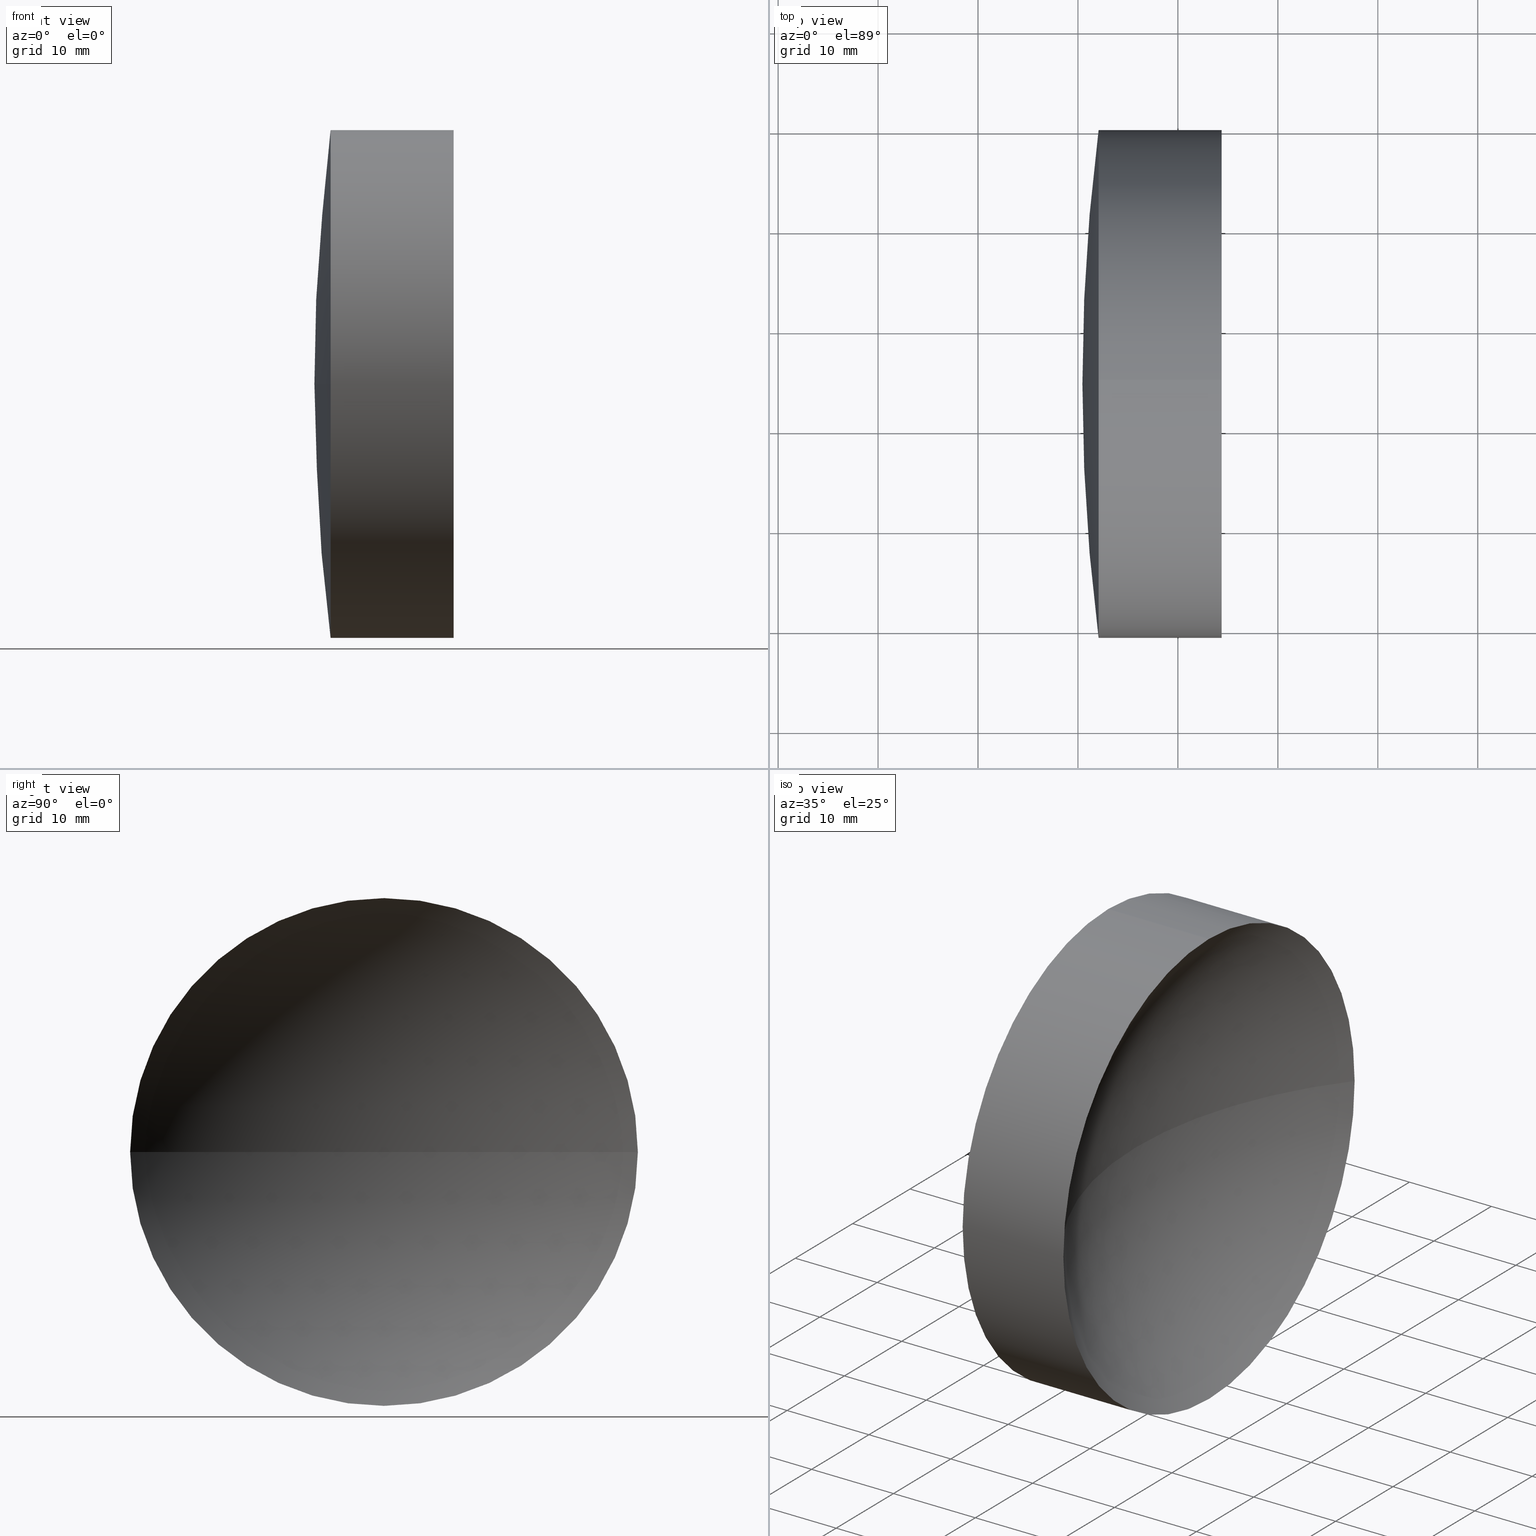
[diagram: canonical four-view strip — front | top / right | iso, engineering-drawing reading convention]
A machine part, canonical four-view strip (front | top / right | iso — engineering-drawing reading convention). The complete STEP part file that produces these views, byte-faithful:
ISO-10303-21;
HEADER;
FILE_DESCRIPTION (( 'STEP AP214' ),
    '1' );
FILE_NAME ('3481-E0W.step',
    '2007-11-08T22:01:41',
    ( ' ' ),
    ( ' ' ),
    'SwSTEP 2.0',
    'SolidWorks 2007',
    '' );
FILE_SCHEMA (( 'AUTOMOTIVE_DESIGN' ));
ENDSEC;

DATA;
#1 = LENGTH_MEASURE_WITH_UNIT ( LENGTH_MEASURE( 0.02539999999999999900 ), #95 );
#2 = DIMENSIONAL_EXPONENTS ( 1.000000000000000000, 0.0000000000000000000, 0.0000000000000000000, 0.0000000000000000000, 0.0000000000000000000, 0.0000000000000000000, 0.0000000000000000000 ) ;
#3 =( CONVERSION_BASED_UNIT ( 'INCH', #1 ) LENGTH_UNIT ( ) NAMED_UNIT ( #2 ) );
#4 =( NAMED_UNIT ( * ) PLANE_ANGLE_UNIT ( ) SI_UNIT ( $, .RADIAN. ) );
#5 =( NAMED_UNIT ( * ) SI_UNIT ( $, .STERADIAN. ) SOLID_ANGLE_UNIT ( ) );
#6 = UNCERTAINTY_MEASURE_WITH_UNIT (LENGTH_MEASURE( 1.000000000000000100E-005 ), #3, 'distance_accuracy_value', 'NONE');
#7 =( GEOMETRIC_REPRESENTATION_CONTEXT ( 3 ) GLOBAL_UNCERTAINTY_ASSIGNED_CONTEXT ( ( #6 ) ) GLOBAL_UNIT_ASSIGNED_CONTEXT ( ( #3, #4, #5 ) ) REPRESENTATION_CONTEXT ( 'NONE', 'WORKASPACE' ) );
#8 = VERTEX_POINT ( 'NONE', #82 ) ;
#9 = ORIENTED_EDGE ( 'NONE', *, *, #10, .T. ) ;
#10 = EDGE_CURVE ( 'NONE', #8, #11, #81, .T. ) ;
#11 = VERTEX_POINT ( 'NONE', #76 ) ;
#12 = ORIENTED_EDGE ( 'NONE', *, *, #13, .T. ) ;
#13 = EDGE_CURVE ( 'NONE', #11, #58, #74, .T. ) ;
#14 = ADVANCED_FACE ( 'NONE', ( #69 ), #108, .T. ) ;
#15 = EDGE_LOOP ( 'NONE', ( #16, #42, #45, #47, #48, #51 ) ) ;
#16 = ORIENTED_EDGE ( 'NONE', *, *, #39, .T. ) ;
#17 = ADVANCED_FACE ( 'NONE', ( #104 ), #148, .F. ) ;
#18 = EDGE_LOOP ( 'NONE', ( #55, #59, #9, #12 ) ) ;
#19 = ADVANCED_FACE ( 'NONE', ( #143 ), #123, .T. ) ;
#20 = EDGE_LOOP ( 'NONE', ( #21, #22, #23, #24, #25, #83 ) ) ;
#21 = ORIENTED_EDGE ( 'NONE', *, *, #43, .F. ) ;
#22 = ORIENTED_EDGE ( 'NONE', *, *, #34, .T. ) ;
#23 = ORIENTED_EDGE ( 'NONE', *, *, #94, .T. ) ;
#24 = ORIENTED_EDGE ( 'NONE', *, *, #49, .T. ) ;
#25 = ORIENTED_EDGE ( 'NONE', *, *, #10, .F. ) ;
#26 = EDGE_LOOP ( 'NONE', ( #86, #87, #88, #89 ) ) ;
#27 = ORIENTED_EDGE ( 'NONE', *, *, #28, .F. ) ;
#28 = EDGE_CURVE ( 'NONE', #29, #40, #124, .T. ) ;
#29 = VERTEX_POINT ( 'NONE', #177 ) ;
#30 = ORIENTED_EDGE ( 'NONE', *, *, #31, .T. ) ;
#31 = EDGE_CURVE ( 'NONE', #29, #32, #176, .T. ) ;
#32 = VERTEX_POINT ( 'NONE', #171 ) ;
#33 = ORIENTED_EDGE ( 'NONE', *, *, #34, .F. ) ;
#34 = EDGE_CURVE ( 'NONE', #41, #32, #169, .T. ) ;
#35 = ORIENTED_EDGE ( 'NONE', *, *, #39, .F. ) ;
#36 = ADVANCED_FACE ( 'NONE', ( #164 ), #204, .T. ) ;
#37 = EDGE_LOOP ( 'NONE', ( #38, #91, #92, #93 ) ) ;
#38 = ORIENTED_EDGE ( 'NONE', *, *, #31, .F. ) ;
#39 = EDGE_CURVE ( 'NONE', #40, #41, #200, .T. ) ;
#40 = VERTEX_POINT ( 'NONE', #195 ) ;
#41 = VERTEX_POINT ( 'NONE', #194 ) ;
#42 = ORIENTED_EDGE ( 'NONE', *, *, #43, .T. ) ;
#43 = EDGE_CURVE ( 'NONE', #41, #44, #193, .T. ) ;
#44 = VERTEX_POINT ( 'NONE', #189 ) ;
#45 = ORIENTED_EDGE ( 'NONE', *, *, #46, .F. ) ;
#46 = EDGE_CURVE ( 'NONE', #58, #44, #187, .T. ) ;
#47 = ORIENTED_EDGE ( 'NONE', *, *, #13, .F. ) ;
#48 = ORIENTED_EDGE ( 'NONE', *, *, #49, .F. ) ;
#49 = EDGE_CURVE ( 'NONE', #50, #11, #188, .T. ) ;
#50 = VERTEX_POINT ( 'NONE', #233 ) ;
#51 = ORIENTED_EDGE ( 'NONE', *, *, #52, .T. ) ;
#52 = EDGE_CURVE ( 'NONE', #50, #40, #231, .T. ) ;
#53 = ADVANCED_FACE ( 'NONE', ( #226 ), #269, .T. ) ;
#54 = EDGE_LOOP ( 'NONE', ( #27, #30, #33, #35 ) ) ;
#55 = ORIENTED_EDGE ( 'NONE', *, *, #56, .F. ) ;
#56 = EDGE_CURVE ( 'NONE', #57, #58, #265, .T. ) ;
#57 = VERTEX_POINT ( 'NONE', #260 ) ;
#58 = VERTEX_POINT ( 'NONE', #259 ) ;
#59 = ORIENTED_EDGE ( 'NONE', *, *, #60, .T. ) ;
#60 = EDGE_CURVE ( 'NONE', #57, #8, #257, .T. ) ;
#61 = PRESENTATION_LAYER_ASSIGNMENT (  '', '', ( #62 ) ) ;
#62 = STYLED_ITEM ( 'NONE', ( #63 ), #14 ) ;
#63 = PRESENTATION_STYLE_ASSIGNMENT (( #64 ) ) ;
#64 = SURFACE_STYLE_USAGE ( .BOTH. , #65 ) ;
#65 = SURFACE_SIDE_STYLE ('',( #66 ) ) ;
#66 = SURFACE_STYLE_FILL_AREA ( #67 ) ;
#67 = FILL_AREA_STYLE ('',( #75 ) ) ;
#68 = COLOUR_RGB ( '',0.7529411764705882200, 0.7529411764705882200, 0.7529411764705882200 ) ;
#69 = FACE_OUTER_BOUND ( 'NONE', #15, .T. ) ;
#70 = DIRECTION ( 'NONE',  ( 0.0000000000000000000, 0.0000000000000000000, -1.000000000000000000 ) ) ;
#71 = DIRECTION ( 'NONE',  ( 1.000000000000000000, 0.0000000000000000000, 0.0000000000000000000 ) ) ;
#72 = CARTESIAN_POINT ( 'NONE',  ( -2.977472932124407100, 1.358932922870714100, 0.8722530675037537500 ) ) ;
#73 = AXIS2_PLACEMENT_3D ( 'NONE', #72, #71, #70 ) ;
#74 = CIRCLE ( 'NONE', #73, 1.000000000000000000 ) ;
#75 = FILL_AREA_STYLE_COLOUR ( '', #68 ) ;
#76 = CARTESIAN_POINT ( 'NONE',  ( -2.977472932124407100, 1.358932922870714100, -0.1277469324962462700 ) ) ;
#77 = DIRECTION ( 'NONE',  ( 0.0000000000000000000, 0.0000000000000000000, -1.000000000000000000 ) ) ;
#78 = DIRECTION ( 'NONE',  ( 1.000000000000000000, 0.0000000000000000000, 0.0000000000000000000 ) ) ;
#79 = CARTESIAN_POINT ( 'NONE',  ( -2.977472932124407100, 1.358932922870714100, 0.8722530675037537500 ) ) ;
#80 = AXIS2_PLACEMENT_3D ( 'NONE', #79, #78, #77 ) ;
#81 = CIRCLE ( 'NONE', #80, 1.000000000000000000 ) ;
#82 = CARTESIAN_POINT ( 'NONE',  ( -2.977472932124407100, 0.3589329228707138800, 0.8722530675037538600 ) ) ;
#83 = ORIENTED_EDGE ( 'NONE', *, *, #84, .F. ) ;
#84 = EDGE_CURVE ( 'NONE', #44, #8, #251, .T. ) ;
#85 = ADVANCED_FACE ( 'NONE', ( #247 ), #281, .F. ) ;
#86 = ORIENTED_EDGE ( 'NONE', *, *, #60, .F. ) ;
#87 = ORIENTED_EDGE ( 'NONE', *, *, #56, .T. ) ;
#88 = ORIENTED_EDGE ( 'NONE', *, *, #46, .T. ) ;
#89 = ORIENTED_EDGE ( 'NONE', *, *, #84, .T. ) ;
#90 = OPEN_SHELL ( 'NONE', ( #17, #14, #53, #36, #19, #85 ) ) ;
#91 = ORIENTED_EDGE ( 'NONE', *, *, #28, .T. ) ;
#92 = ORIENTED_EDGE ( 'NONE', *, *, #52, .F. ) ;
#93 = ORIENTED_EDGE ( 'NONE', *, *, #94, .F. ) ;
#94 = EDGE_CURVE ( 'NONE', #32, #50, #277, .T. ) ;
#95 =( LENGTH_UNIT ( ) NAMED_UNIT ( * ) SI_UNIT ( $, .METRE. ) );
#96 = MECHANICAL_DESIGN_GEOMETRIC_PRESENTATION_REPRESENTATION (  '', ( #98 ), #7 ) ;
#97 = PRESENTATION_LAYER_ASSIGNMENT (  '', '', ( #98 ) ) ;
#98 = STYLED_ITEM ( 'NONE', ( #99 ), #17 ) ;
#99 = PRESENTATION_STYLE_ASSIGNMENT (( #100 ) ) ;
#100 = SURFACE_STYLE_USAGE ( .BOTH. , #101 ) ;
#101 = SURFACE_SIDE_STYLE ('',( #102 ) ) ;
#102 = SURFACE_STYLE_FILL_AREA ( #109 ) ;
#103 = COLOUR_RGB ( '',0.7529411764705882200, 0.7529411764705882200, 0.7529411764705882200 ) ;
#104 = FACE_OUTER_BOUND ( 'NONE', #18, .T. ) ;
#105 = DIRECTION ( 'NONE',  ( 0.0000000000000000000, 0.0000000000000000000, -1.000000000000000000 ) ) ;
#106 = DIRECTION ( 'NONE',  ( 1.000000000000000000, 0.0000000000000000000, 0.0000000000000000000 ) ) ;
#107 = AXIS2_PLACEMENT_3D ( 'NONE', #111, #106, #105 ) ;
#108 = CYLINDRICAL_SURFACE ( 'NONE', #107, 1.000000000000000700 ) ;
#109 = FILL_AREA_STYLE ('',( #110 ) ) ;
#110 = FILL_AREA_STYLE_COLOUR ( '', #103 ) ;
#111 = CARTESIAN_POINT ( 'NONE',  ( -3.328916529300524300, 1.358932922870714100, 0.8722530675037537500 ) ) ;
#112 =( GEOMETRIC_REPRESENTATION_CONTEXT ( 3 ) GLOBAL_UNCERTAINTY_ASSIGNED_CONTEXT ( ( #113 ) ) GLOBAL_UNIT_ASSIGNED_CONTEXT ( ( #116, #115, #114 ) ) REPRESENTATION_CONTEXT ( 'NONE', 'WORKASPACE' ) );
#113 = UNCERTAINTY_MEASURE_WITH_UNIT (LENGTH_MEASURE( 1.000000000000000100E-005 ), #116, 'distance_accuracy_value', 'NONE');
#114 =( NAMED_UNIT ( * ) SI_UNIT ( $, .STERADIAN. ) SOLID_ANGLE_UNIT ( ) );
#115 =( NAMED_UNIT ( * ) PLANE_ANGLE_UNIT ( ) SI_UNIT ( $, .RADIAN. ) );
#116 =( CONVERSION_BASED_UNIT ( 'INCH', #117 ) LENGTH_UNIT ( ) NAMED_UNIT ( #118 ) );
#117 = LENGTH_MEASURE_WITH_UNIT ( LENGTH_MEASURE( 0.02539999999999999900 ), #119 );
#118 = DIMENSIONAL_EXPONENTS ( 1.000000000000000000, 0.0000000000000000000, 0.0000000000000000000, 0.0000000000000000000, 0.0000000000000000000, 0.0000000000000000000, 0.0000000000000000000 ) ;
#119 =( LENGTH_UNIT ( ) NAMED_UNIT ( * ) SI_UNIT ( $, .METRE. ) );
#120 = MECHANICAL_DESIGN_GEOMETRIC_PRESENTATION_REPRESENTATION (  '', ( #62 ), #112 ) ;
#121 = DIRECTION ( 'NONE',  ( 1.000000000000000000, 0.0000000000000000000, 0.0000000000000000000 ) ) ;
#122 = AXIS2_PLACEMENT_3D ( 'NONE', #125, #121, #182 ) ;
#123 = CYLINDRICAL_SURFACE ( 'NONE', #122, 1.000000000000000700 ) ;
#124 = CIRCLE ( 'NONE', #181, 7.874015748031496300 ) ;
#125 = CARTESIAN_POINT ( 'NONE',  ( -3.328916529300524300, 1.358932922870714100, 0.8722530675037537500 ) ) ;
#126 =( GEOMETRIC_REPRESENTATION_CONTEXT ( 3 ) GLOBAL_UNCERTAINTY_ASSIGNED_CONTEXT ( ( #127 ) ) GLOBAL_UNIT_ASSIGNED_CONTEXT ( ( #130, #129, #128 ) ) REPRESENTATION_CONTEXT ( 'NONE', 'WORKASPACE' ) );
#127 = UNCERTAINTY_MEASURE_WITH_UNIT (LENGTH_MEASURE( 1.000000000000000100E-005 ), #130, 'distance_accuracy_value', 'NONE');
#128 =( NAMED_UNIT ( * ) SI_UNIT ( $, .STERADIAN. ) SOLID_ANGLE_UNIT ( ) );
#129 =( NAMED_UNIT ( * ) PLANE_ANGLE_UNIT ( ) SI_UNIT ( $, .RADIAN. ) );
#130 =( CONVERSION_BASED_UNIT ( 'INCH', #131 ) LENGTH_UNIT ( ) NAMED_UNIT ( #132 ) );
#131 = LENGTH_MEASURE_WITH_UNIT ( LENGTH_MEASURE( 0.02539999999999999900 ), #133 );
#132 = DIMENSIONAL_EXPONENTS ( 1.000000000000000000, 0.0000000000000000000, 0.0000000000000000000, 0.0000000000000000000, 0.0000000000000000000, 0.0000000000000000000, 0.0000000000000000000 ) ;
#133 =( LENGTH_UNIT ( ) NAMED_UNIT ( * ) SI_UNIT ( $, .METRE. ) );
#134 = MECHANICAL_DESIGN_GEOMETRIC_PRESENTATION_REPRESENTATION (  '', ( #136 ), #126 ) ;
#135 = PRESENTATION_LAYER_ASSIGNMENT (  '', '', ( #136 ) ) ;
#136 = STYLED_ITEM ( 'NONE', ( #137 ), #19 ) ;
#137 = PRESENTATION_STYLE_ASSIGNMENT (( #138 ) ) ;
#138 = SURFACE_STYLE_USAGE ( .BOTH. , #139 ) ;
#139 = SURFACE_SIDE_STYLE ('',( #140 ) ) ;
#140 = SURFACE_STYLE_FILL_AREA ( #141 ) ;
#141 = FILL_AREA_STYLE ('',( #149 ) ) ;
#142 = COLOUR_RGB ( '',0.7529411764705882200, 0.7529411764705882200, 0.7529411764705882200 ) ;
#143 = FACE_OUTER_BOUND ( 'NONE', #20, .T. ) ;
#144 = DIRECTION ( 'NONE',  ( 0.0000000000000000000, 1.000000000000000000, 0.0000000000000000000 ) ) ;
#145 = DIRECTION ( 'NONE',  ( 0.0000000000000000000, 0.0000000000000000000, 1.000000000000000000 ) ) ;
#146 = CARTESIAN_POINT ( 'NONE',  ( -1.730491332450129400, 1.358932922870714100, 0.8722530675037537500 ) ) ;
#147 = AXIS2_PLACEMENT_3D ( 'NONE', #146, #145, #144 ) ;
#148 = SPHERICAL_SURFACE ( 'NONE', #147, 1.598425196850394400 ) ;
#149 = FILL_AREA_STYLE_COLOUR ( '', #142 ) ;
#150 =( NAMED_UNIT ( * ) PLANE_ANGLE_UNIT ( ) SI_UNIT ( $, .RADIAN. ) );
#151 =( CONVERSION_BASED_UNIT ( 'INCH', #152 ) LENGTH_UNIT ( ) NAMED_UNIT ( #153 ) );
#152 = LENGTH_MEASURE_WITH_UNIT ( LENGTH_MEASURE( 0.02539999999999999900 ), #154 );
#153 = DIMENSIONAL_EXPONENTS ( 1.000000000000000000, 0.0000000000000000000, 0.0000000000000000000, 0.0000000000000000000, 0.0000000000000000000, 0.0000000000000000000, 0.0000000000000000000 ) ;
#154 =( LENGTH_UNIT ( ) NAMED_UNIT ( * ) SI_UNIT ( $, .METRE. ) );
#155 = MECHANICAL_DESIGN_GEOMETRIC_PRESENTATION_REPRESENTATION (  '', ( #157 ), #206 ) ;
#156 = PRESENTATION_LAYER_ASSIGNMENT (  '', '', ( #157 ) ) ;
#157 = STYLED_ITEM ( 'NONE', ( #158 ), #36 ) ;
#158 = PRESENTATION_STYLE_ASSIGNMENT (( #159 ) ) ;
#159 = SURFACE_STYLE_USAGE ( .BOTH. , #160 ) ;
#160 = SURFACE_SIDE_STYLE ('',( #161 ) ) ;
#161 = SURFACE_STYLE_FILL_AREA ( #162 ) ;
#162 = FILL_AREA_STYLE ('',( #170 ) ) ;
#163 = COLOUR_RGB ( '',0.7529411764705882200, 0.7529411764705882200, 0.7529411764705882200 ) ;
#164 = FACE_OUTER_BOUND ( 'NONE', #37, .T. ) ;
#165 = DIRECTION ( 'NONE',  ( 0.0000000000000000000, 0.0000000000000000000, -1.000000000000000000 ) ) ;
#166 = DIRECTION ( 'NONE',  ( 1.000000000000000000, 0.0000000000000000000, 0.0000000000000000000 ) ) ;
#167 = CARTESIAN_POINT ( 'NONE',  ( -3.462008789174868500, 1.358932922870714100, 0.8722530675037537500 ) ) ;
#168 = AXIS2_PLACEMENT_3D ( 'NONE', #167, #166, #165 ) ;
#169 = CIRCLE ( 'NONE', #168, 1.000000000000001300 ) ;
#170 = FILL_AREA_STYLE_COLOUR ( '', #163 ) ;
#171 = CARTESIAN_POINT ( 'NONE',  ( -3.462008789174868500, 0.3589329228707141600, 0.8722530675037538600 ) ) ;
#172 = DIRECTION ( 'NONE',  ( 0.0000000000000000000, -1.000000000000000000, 1.214306433183764700E-016 ) ) ;
#173 = DIRECTION ( 'NONE',  ( 0.0000000000000000000, 1.224606353822377300E-016, 1.000000000000000000 ) ) ;
#174 = CARTESIAN_POINT ( 'NONE',  ( 4.348248825030185400, 1.358932922870714100, 0.8722530675037537500 ) ) ;
#175 = AXIS2_PLACEMENT_3D ( 'NONE', #174, #173, #172 ) ;
#176 = CIRCLE ( 'NONE', #175, 7.874015748031496300 ) ;
#177 = CARTESIAN_POINT ( 'NONE',  ( -3.525766923001311800, 1.358932922870714800, 0.8722530675037537500 ) ) ;
#178 = DIRECTION ( 'NONE',  ( -1.000000000000000000, 0.0000000000000000000, 0.0000000000000000000 ) ) ;
#179 = DIRECTION ( 'NONE',  ( 0.0000000000000000000, 0.0000000000000000000, -1.000000000000000000 ) ) ;
#180 = CARTESIAN_POINT ( 'NONE',  ( 4.348248825030185400, 1.358932922870714100, 0.8722530675037537500 ) ) ;
#181 = AXIS2_PLACEMENT_3D ( 'NONE', #180, #179, #178 ) ;
#182 = DIRECTION ( 'NONE',  ( 0.0000000000000000000, 0.0000000000000000000, -1.000000000000000000 ) ) ;
#183 = DIRECTION ( 'NONE',  ( 0.0000000000000000000, 0.0000000000000000000, -1.000000000000000000 ) ) ;
#184 = DIRECTION ( 'NONE',  ( 1.000000000000000000, 0.0000000000000000000, 0.0000000000000000000 ) ) ;
#185 = CARTESIAN_POINT ( 'NONE',  ( -2.977472932124407100, 1.358932922870714100, 0.8722530675037537500 ) ) ;
#186 = AXIS2_PLACEMENT_3D ( 'NONE', #185, #184, #183 ) ;
#187 = CIRCLE ( 'NONE', #186, 1.000000000000000000 ) ;
#188 = LINE ( 'NONE', #236, #235 ) ;
#189 = CARTESIAN_POINT ( 'NONE',  ( -2.977472932124407100, 1.358932922870714100, 1.872253067503753600 ) ) ;
#190 = DIRECTION ( 'NONE',  ( 1.000000000000000000, 0.0000000000000000000, 0.0000000000000000000 ) ) ;
#191 = VECTOR ( 'NONE', #190, 39.37007874015748100 ) ;
#192 = CARTESIAN_POINT ( 'NONE',  ( -3.328916529300524300, 1.358932922870714100, 1.872253067503754500 ) ) ;
#193 = LINE ( 'NONE', #192, #191 ) ;
#194 = CARTESIAN_POINT ( 'NONE',  ( -3.462008789174868500, 1.358932922870714100, 1.872253067503755000 ) ) ;
#195 = CARTESIAN_POINT ( 'NONE',  ( -3.462008789174867700, 2.358932922870714300, 0.8722530675037537500 ) ) ;
#196 = DIRECTION ( 'NONE',  ( 0.0000000000000000000, 0.0000000000000000000, -1.000000000000000000 ) ) ;
#197 = DIRECTION ( 'NONE',  ( 1.000000000000000000, 0.0000000000000000000, 0.0000000000000000000 ) ) ;
#198 = CARTESIAN_POINT ( 'NONE',  ( -3.462008789174868500, 1.358932922870714100, 0.8722530675037537500 ) ) ;
#199 = AXIS2_PLACEMENT_3D ( 'NONE', #198, #197, #196 ) ;
#200 = CIRCLE ( 'NONE', #199, 1.000000000000001300 ) ;
#201 = DIRECTION ( 'NONE',  ( 0.0000000000000000000, 1.000000000000000000, 0.0000000000000000000 ) ) ;
#202 = DIRECTION ( 'NONE',  ( 0.0000000000000000000, 0.0000000000000000000, 1.000000000000000000 ) ) ;
#203 = AXIS2_PLACEMENT_3D ( 'NONE', #205, #202, #201 ) ;
#204 = SPHERICAL_SURFACE ( 'NONE', #203, 7.874015748031496300 ) ;
#205 = CARTESIAN_POINT ( 'NONE',  ( 4.348248825030185400, 1.358932922870714100, 0.8722530675037537500 ) ) ;
#206 =( GEOMETRIC_REPRESENTATION_CONTEXT ( 3 ) GLOBAL_UNCERTAINTY_ASSIGNED_CONTEXT ( ( #207 ) ) GLOBAL_UNIT_ASSIGNED_CONTEXT ( ( #151, #150, #208 ) ) REPRESENTATION_CONTEXT ( 'NONE', 'WORKASPACE' ) );
#207 = UNCERTAINTY_MEASURE_WITH_UNIT (LENGTH_MEASURE( 1.000000000000000100E-005 ), #151, 'distance_accuracy_value', 'NONE');
#208 =( NAMED_UNIT ( * ) SI_UNIT ( $, .STERADIAN. ) SOLID_ANGLE_UNIT ( ) );
#209 =( GEOMETRIC_REPRESENTATION_CONTEXT ( 3 ) GLOBAL_UNCERTAINTY_ASSIGNED_CONTEXT ( ( #210 ) ) GLOBAL_UNIT_ASSIGNED_CONTEXT ( ( #213, #212, #211 ) ) REPRESENTATION_CONTEXT ( 'NONE', 'WORKASPACE' ) );
#210 = UNCERTAINTY_MEASURE_WITH_UNIT (LENGTH_MEASURE( 1.000000000000000100E-005 ), #213, 'distance_accuracy_value', 'NONE');
#211 =( NAMED_UNIT ( * ) SI_UNIT ( $, .STERADIAN. ) SOLID_ANGLE_UNIT ( ) );
#212 =( NAMED_UNIT ( * ) PLANE_ANGLE_UNIT ( ) SI_UNIT ( $, .RADIAN. ) );
#213 =( CONVERSION_BASED_UNIT ( 'INCH', #214 ) LENGTH_UNIT ( ) NAMED_UNIT ( #215 ) );
#214 = LENGTH_MEASURE_WITH_UNIT ( LENGTH_MEASURE( 0.02539999999999999900 ), #216 );
#215 = DIMENSIONAL_EXPONENTS ( 1.000000000000000000, 0.0000000000000000000, 0.0000000000000000000, 0.0000000000000000000, 0.0000000000000000000, 0.0000000000000000000, 0.0000000000000000000 ) ;
#216 =( LENGTH_UNIT ( ) NAMED_UNIT ( * ) SI_UNIT ( $, .METRE. ) );
#217 = MECHANICAL_DESIGN_GEOMETRIC_PRESENTATION_REPRESENTATION (  '', ( #219 ), #209 ) ;
#218 = PRESENTATION_LAYER_ASSIGNMENT (  '', '', ( #219 ) ) ;
#219 = STYLED_ITEM ( 'NONE', ( #220 ), #53 ) ;
#220 = PRESENTATION_STYLE_ASSIGNMENT (( #221 ) ) ;
#221 = SURFACE_STYLE_USAGE ( .BOTH. , #222 ) ;
#222 = SURFACE_SIDE_STYLE ('',( #223 ) ) ;
#223 = SURFACE_STYLE_FILL_AREA ( #224 ) ;
#224 = FILL_AREA_STYLE ('',( #232 ) ) ;
#225 = COLOUR_RGB ( '',0.7529411764705882200, 0.7529411764705882200, 0.7529411764705882200 ) ;
#226 = FACE_OUTER_BOUND ( 'NONE', #54, .T. ) ;
#227 = DIRECTION ( 'NONE',  ( 0.0000000000000000000, 0.0000000000000000000, -1.000000000000000000 ) ) ;
#228 = DIRECTION ( 'NONE',  ( 1.000000000000000000, 0.0000000000000000000, 0.0000000000000000000 ) ) ;
#229 = CARTESIAN_POINT ( 'NONE',  ( -3.462008789174868500, 1.358932922870714100, 0.8722530675037537500 ) ) ;
#230 = AXIS2_PLACEMENT_3D ( 'NONE', #229, #228, #227 ) ;
#231 = CIRCLE ( 'NONE', #230, 1.000000000000001300 ) ;
#232 = FILL_AREA_STYLE_COLOUR ( '', #225 ) ;
#233 = CARTESIAN_POINT ( 'NONE',  ( -3.462008789174868500, 1.358932922870714100, -0.1277469324962476600 ) ) ;
#234 = DIRECTION ( 'NONE',  ( 1.000000000000000000, 0.0000000000000000000, 0.0000000000000000000 ) ) ;
#235 = VECTOR ( 'NONE', #234, 39.37007874015748100 ) ;
#236 = CARTESIAN_POINT ( 'NONE',  ( -3.328916529300524300, 1.358932922870714100, -0.1277469324962469700 ) ) ;
#237 =( LENGTH_UNIT ( ) NAMED_UNIT ( * ) SI_UNIT ( $, .METRE. ) );
#238 = MECHANICAL_DESIGN_GEOMETRIC_PRESENTATION_REPRESENTATION (  '', ( #240 ), #283 ) ;
#239 = PRESENTATION_LAYER_ASSIGNMENT (  '', '', ( #240 ) ) ;
#240 = STYLED_ITEM ( 'NONE', ( #241 ), #85 ) ;
#241 = PRESENTATION_STYLE_ASSIGNMENT (( #242 ) ) ;
#242 = SURFACE_STYLE_USAGE ( .BOTH. , #243 ) ;
#243 = SURFACE_SIDE_STYLE ('',( #244 ) ) ;
#244 = SURFACE_STYLE_FILL_AREA ( #245 ) ;
#245 = FILL_AREA_STYLE ('',( #252 ) ) ;
#246 = COLOUR_RGB ( '',0.7529411764705882200, 0.7529411764705882200, 0.7529411764705882200 ) ;
#247 = FACE_OUTER_BOUND ( 'NONE', #26, .T. ) ;
#248 = DIRECTION ( 'NONE',  ( 0.0000000000000000000, 0.0000000000000000000, -1.000000000000000000 ) ) ;
#249 = DIRECTION ( 'NONE',  ( 1.000000000000000000, 0.0000000000000000000, 0.0000000000000000000 ) ) ;
#250 = AXIS2_PLACEMENT_3D ( 'NONE', #258, #249, #248 ) ;
#251 = CIRCLE ( 'NONE', #250, 1.000000000000000000 ) ;
#252 = FILL_AREA_STYLE_COLOUR ( '', #246 ) ;
#253 = DIRECTION ( 'NONE',  ( 0.0000000000000000000, -1.000000000000000000, 8.545435842250277300E-017 ) ) ;
#254 = DIRECTION ( 'NONE',  ( 0.0000000000000000000, 1.224606353822377300E-016, 1.000000000000000000 ) ) ;
#255 = CARTESIAN_POINT ( 'NONE',  ( -1.730491332450129400, 1.358932922870714100, 0.8722530675037537500 ) ) ;
#256 = AXIS2_PLACEMENT_3D ( 'NONE', #255, #254, #253 ) ;
#257 = CIRCLE ( 'NONE', #256, 1.598425196850394400 ) ;
#258 = CARTESIAN_POINT ( 'NONE',  ( -2.977472932124407100, 1.358932922870714100, 0.8722530675037537500 ) ) ;
#259 = CARTESIAN_POINT ( 'NONE',  ( -2.977472932124407100, 2.358932922870714300, 0.8722530675037537500 ) ) ;
#260 = CARTESIAN_POINT ( 'NONE',  ( -3.328916529300524300, 1.358932922870714100, 0.8722530675037537500 ) ) ;
#261 = DIRECTION ( 'NONE',  ( -1.000000000000000000, 0.0000000000000000000, 0.0000000000000000000 ) ) ;
#262 = DIRECTION ( 'NONE',  ( 0.0000000000000000000, 0.0000000000000000000, -1.000000000000000000 ) ) ;
#263 = CARTESIAN_POINT ( 'NONE',  ( -1.730491332450129400, 1.358932922870714100, 0.8722530675037537500 ) ) ;
#264 = AXIS2_PLACEMENT_3D ( 'NONE', #263, #262, #261 ) ;
#265 = CIRCLE ( 'NONE', #264, 1.598425196850394600 ) ;
#266 = DIRECTION ( 'NONE',  ( 0.0000000000000000000, 1.000000000000000000, 0.0000000000000000000 ) ) ;
#267 = DIRECTION ( 'NONE',  ( 0.0000000000000000000, 0.0000000000000000000, 1.000000000000000000 ) ) ;
#268 = AXIS2_PLACEMENT_3D ( 'NONE', #270, #267, #266 ) ;
#269 = SPHERICAL_SURFACE ( 'NONE', #268, 7.874015748031496300 ) ;
#270 = CARTESIAN_POINT ( 'NONE',  ( 4.348248825030185400, 1.358932922870714100, 0.8722530675037537500 ) ) ;
#271 = DIMENSIONAL_EXPONENTS ( 1.000000000000000000, 0.0000000000000000000, 0.0000000000000000000, 0.0000000000000000000, 0.0000000000000000000, 0.0000000000000000000, 0.0000000000000000000 ) ;
#272 =( LENGTH_UNIT ( ) NAMED_UNIT ( * ) SI_UNIT ( $, .METRE. ) );
#273 = DIRECTION ( 'NONE',  ( 0.0000000000000000000, 0.0000000000000000000, -1.000000000000000000 ) ) ;
#274 = DIRECTION ( 'NONE',  ( 1.000000000000000000, 0.0000000000000000000, 0.0000000000000000000 ) ) ;
#275 = CARTESIAN_POINT ( 'NONE',  ( -3.462008789174868500, 1.358932922870714100, 0.8722530675037537500 ) ) ;
#276 = AXIS2_PLACEMENT_3D ( 'NONE', #275, #274, #273 ) ;
#277 = CIRCLE ( 'NONE', #276, 1.000000000000001300 ) ;
#278 = DIRECTION ( 'NONE',  ( 0.0000000000000000000, 1.000000000000000000, 0.0000000000000000000 ) ) ;
#279 = DIRECTION ( 'NONE',  ( 0.0000000000000000000, 0.0000000000000000000, 1.000000000000000000 ) ) ;
#280 = AXIS2_PLACEMENT_3D ( 'NONE', #282, #279, #278 ) ;
#281 = SPHERICAL_SURFACE ( 'NONE', #280, 1.598425196850394400 ) ;
#282 = CARTESIAN_POINT ( 'NONE',  ( -1.730491332450129400, 1.358932922870714100, 0.8722530675037537500 ) ) ;
#283 =( GEOMETRIC_REPRESENTATION_CONTEXT ( 3 ) GLOBAL_UNCERTAINTY_ASSIGNED_CONTEXT ( ( #284 ) ) GLOBAL_UNIT_ASSIGNED_CONTEXT ( ( #287, #286, #285 ) ) REPRESENTATION_CONTEXT ( 'NONE', 'WORKASPACE' ) );
#284 = UNCERTAINTY_MEASURE_WITH_UNIT (LENGTH_MEASURE( 1.000000000000000100E-005 ), #287, 'distance_accuracy_value', 'NONE');
#285 =( NAMED_UNIT ( * ) SI_UNIT ( $, .STERADIAN. ) SOLID_ANGLE_UNIT ( ) );
#286 =( NAMED_UNIT ( * ) PLANE_ANGLE_UNIT ( ) SI_UNIT ( $, .RADIAN. ) );
#287 =( CONVERSION_BASED_UNIT ( 'INCH', #288 ) LENGTH_UNIT ( ) NAMED_UNIT ( #289 ) );
#288 = LENGTH_MEASURE_WITH_UNIT ( LENGTH_MEASURE( 0.02539999999999999900 ), #237 );
#289 = DIMENSIONAL_EXPONENTS ( 1.000000000000000000, 0.0000000000000000000, 0.0000000000000000000, 0.0000000000000000000, 0.0000000000000000000, 0.0000000000000000000, 0.0000000000000000000 ) ;
#290 = DIRECTION ( 'NONE',  ( 1.000000000000000000, 0.0000000000000000000, 0.0000000000000000000 ) ) ;
#291 = DIRECTION ( 'NONE',  ( 0.0000000000000000000, 0.0000000000000000000, 1.000000000000000000 ) ) ;
#292 = CARTESIAN_POINT ( 'NONE',  ( 0.0000000000000000000, 0.0000000000000000000, 0.0000000000000000000 ) ) ;
#293 = AXIS2_PLACEMENT_3D ( 'NONE', #292, #291, #290 ) ;
#294 = SHAPE_DEFINITION_REPRESENTATION ( #303, #296 ) ;
#295 = SHELL_BASED_SURFACE_MODEL ( 'NONE', ( #90 ) );
#296 = MANIFOLD_SURFACE_SHAPE_REPRESENTATION ( '3481-E0W', ( #295, #293 ), #297 ) ;
#297 =( GEOMETRIC_REPRESENTATION_CONTEXT ( 3 ) GLOBAL_UNCERTAINTY_ASSIGNED_CONTEXT ( ( #298 ) ) GLOBAL_UNIT_ASSIGNED_CONTEXT ( ( #301, #300, #299 ) ) REPRESENTATION_CONTEXT ( 'NONE', 'WORKASPACE' ) );
#298 = UNCERTAINTY_MEASURE_WITH_UNIT (LENGTH_MEASURE( 1.000000000000000100E-005 ), #301, 'distance_accuracy_value', 'NONE');
#299 =( NAMED_UNIT ( * ) SI_UNIT ( $, .STERADIAN. ) SOLID_ANGLE_UNIT ( ) );
#300 =( NAMED_UNIT ( * ) PLANE_ANGLE_UNIT ( ) SI_UNIT ( $, .RADIAN. ) );
#301 =( CONVERSION_BASED_UNIT ( 'INCH', #302 ) LENGTH_UNIT ( ) NAMED_UNIT ( #271 ) );
#302 = LENGTH_MEASURE_WITH_UNIT ( LENGTH_MEASURE( 0.02539999999999999900 ), #272 );
#303 = PRODUCT_DEFINITION_SHAPE ( 'NONE', 'NONE',  #306 ) ;
#304 = PRODUCT_RELATED_PRODUCT_CATEGORY ( 'part', '', ( #310 ) ) ;
#305 = PRODUCT_DEFINITION_FORMATION_WITH_SPECIFIED_SOURCE ( 'ANY', '', #310, .NOT_KNOWN. ) ;
#306 = PRODUCT_DEFINITION ( 'UNKNOWN', '', #305, #307 ) ;
#307 = PRODUCT_DEFINITION_CONTEXT ( 'detailed design', #309, 'design' ) ;
#308 = APPLICATION_PROTOCOL_DEFINITION ( 'draft international standard', 'automotive_design', 1998, #309 ) ;
#309 = APPLICATION_CONTEXT ( 'automotive_design' ) ;
#310 = PRODUCT ( '3481-E0W', '3481-E0W', '', ( #311 ) ) ;
#311 = PRODUCT_CONTEXT ( 'NONE', #313, 'mechanical' ) ;
#312 = APPLICATION_PROTOCOL_DEFINITION ( 'draft international standard', 'automotive_design', 1998, #313 ) ;
#313 = APPLICATION_CONTEXT ( 'automotive_design' ) ;
ENDSEC;
END-ISO-10303-21;
